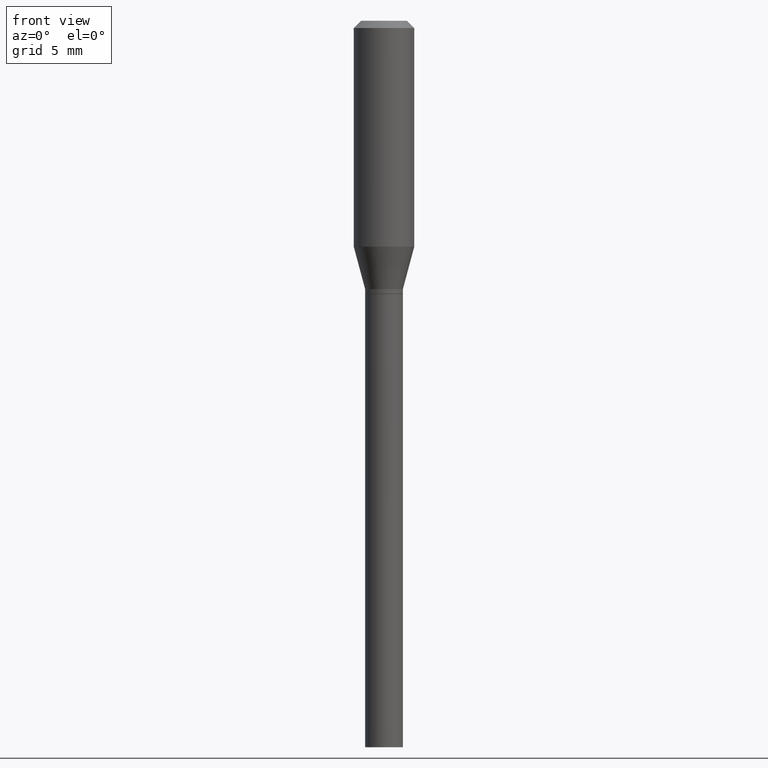
[diagram: clean part render]
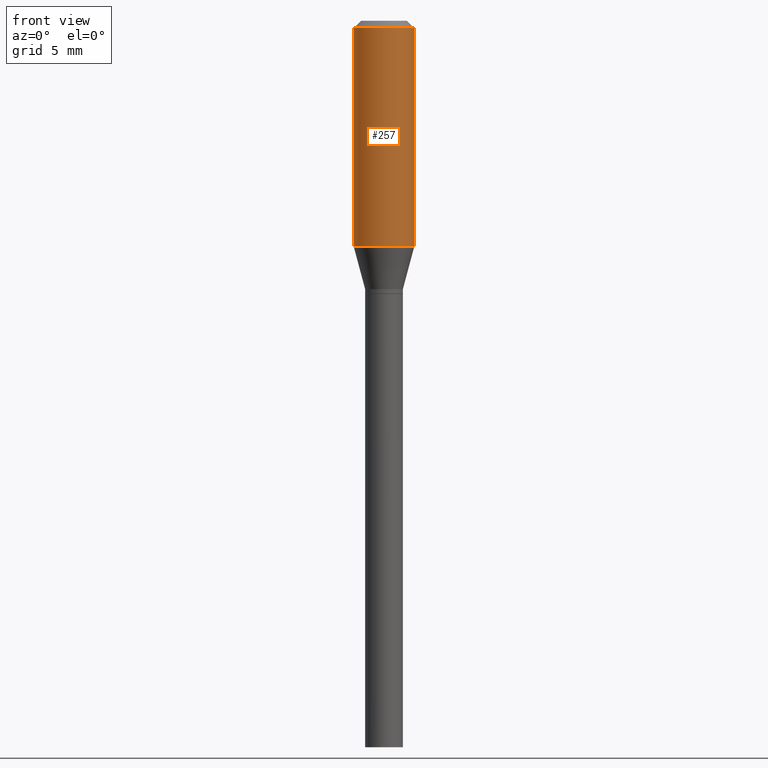
[diagram: same view with one face highlighted and labeled with its STEP entity id]
A machine part, front view. The second image highlights one B-rep face of the part: STEP entity #257.
In plain terms, the highlighted cylindrical surface (edge-blend (fillet) strip) has radius 1.5875 mm, axis along (-0, 0, 1).
Its self-contained STEP definition (entity closure, byte-faithful):
#8 = ORIENTED_EDGE ( 'NONE', *, *, #204, .T. ) ;
#70 = EDGE_CURVE ( 'NONE', #100, #153, #107, .T. ) ;
#73 = DIRECTION ( 'NONE',  ( -2.445468806185136877E-29, 3.491481338843145188E-15, 1.000000000000000000 ) ) ;
#75 = VECTOR ( 'NONE', #445, 39.37007874015748143 ) ;
#87 = CARTESIAN_POINT ( 'NONE',  ( 0.000000000000000000, 0.000000000000000000, 0.000000000000000000 ) ) ;
#100 = VERTEX_POINT ( 'NONE', #196 ) ;
#107 = LINE ( 'NONE', #396, #135 ) ;
#109 = CARTESIAN_POINT ( 'NONE',  ( -0.06250000000000000000, -3.961301984854776856E-16, -0.01499999999999999944 ) ) ;
#116 = DIRECTION ( 'NONE',  ( 1.000000000000000000, -6.982962677686266711E-15, 0.000000000000000000 ) ) ;
#123 = CARTESIAN_POINT ( 'NONE',  ( 0.06250000000000000000, -4.364351673553916694E-16, 3.047610484872459871E-30 ) ) ;
#126 = LINE ( 'NONE', #123, #75 ) ;
#127 = VERTEX_POINT ( 'NONE', #330 ) ;
#135 = VECTOR ( 'NONE', #73, 39.37007874015748143 ) ;
#139 = AXIS2_PLACEMENT_3D ( 'NONE', #87, #407, #296 ) ;
#151 = DIRECTION ( 'NONE',  ( -2.445468806185136597E-29, 3.491481338843145583E-15, 1.000000000000000000 ) ) ;
#153 = VERTEX_POINT ( 'NONE', #109 ) ;
#154 = CARTESIAN_POINT ( 'NONE',  ( 0.06250000000000000000, -4.888073874380388472E-16, -0.01499999999999999944 ) ) ;
#185 = EDGE_LOOP ( 'NONE', ( #302, #254, #8, #199 ) ) ;
#192 = CIRCLE ( 'NONE', #331, 0.06250000000000000000 ) ;
#193 = VERTEX_POINT ( 'NONE', #154 ) ;
#196 = CARTESIAN_POINT ( 'NONE',  ( -0.06250000000000000000, -1.183977386738370809E-15, -0.4662968060221312494 ) ) ;
#199 = ORIENTED_EDGE ( 'NONE', *, *, #410, .F. ) ;
#204 = EDGE_CURVE ( 'NONE', #127, #193, #126, .T. ) ;
#214 = DIRECTION ( 'NONE',  ( -2.445468806185136597E-29, 3.491481338843145583E-15, 1.000000000000000000 ) ) ;
#248 = CIRCLE ( 'NONE', #283, 0.06250000000000000000 ) ;
#251 = CARTESIAN_POINT ( 'NONE',  ( 1.140314293550883428E-29, -1.628066596588433426E-15, -0.4662968060221312494 ) ) ;
#254 = ORIENTED_EDGE ( 'NONE', *, *, #337, .T. ) ;
#257 = ADVANCED_FACE ( 'NONE', ( #441 ), #370, .T. ) ;
#283 = AXIS2_PLACEMENT_3D ( 'NONE', #365, #151, #440 ) ;
#296 = DIRECTION ( 'NONE',  ( 1.000000000000000000, -6.982962677686266711E-15, 4.876176775795935793E-29 ) ) ;
#302 = ORIENTED_EDGE ( 'NONE', *, *, #70, .F. ) ;
#330 = CARTESIAN_POINT ( 'NONE',  ( 0.06250000000000000000, -2.064501763943824898E-15, -0.4662968060221312494 ) ) ;
#331 = AXIS2_PLACEMENT_3D ( 'NONE', #251, #214, #116 ) ;
#337 = EDGE_CURVE ( 'NONE', #100, #127, #192, .T. ) ;
#365 = CARTESIAN_POINT ( 'NONE',  ( 3.668203209277705088E-31, -5.237222008264718399E-17, -0.01499999999999999944 ) ) ;
#370 = CYLINDRICAL_SURFACE ( 'NONE', #139, 0.06250000000000000000 ) ;
#396 = CARTESIAN_POINT ( 'NONE',  ( -0.06250000000000000000, 4.440892098500626162E-16, -3.074334431409316114E-30 ) ) ;
#407 = DIRECTION ( 'NONE',  ( -2.445468806185136597E-29, 3.491481338843145583E-15, 1.000000000000000000 ) ) ;
#410 = EDGE_CURVE ( 'NONE', #153, #193, #248, .T. ) ;
#440 = DIRECTION ( 'NONE',  ( 1.000000000000000000, -6.982962677686266711E-15, 0.000000000000000000 ) ) ;
#441 = FACE_OUTER_BOUND ( 'NONE', #185, .T. ) ;
#445 = DIRECTION ( 'NONE',  ( -2.445468806185136877E-29, 3.491481338843145188E-15, 1.000000000000000000 ) ) ;